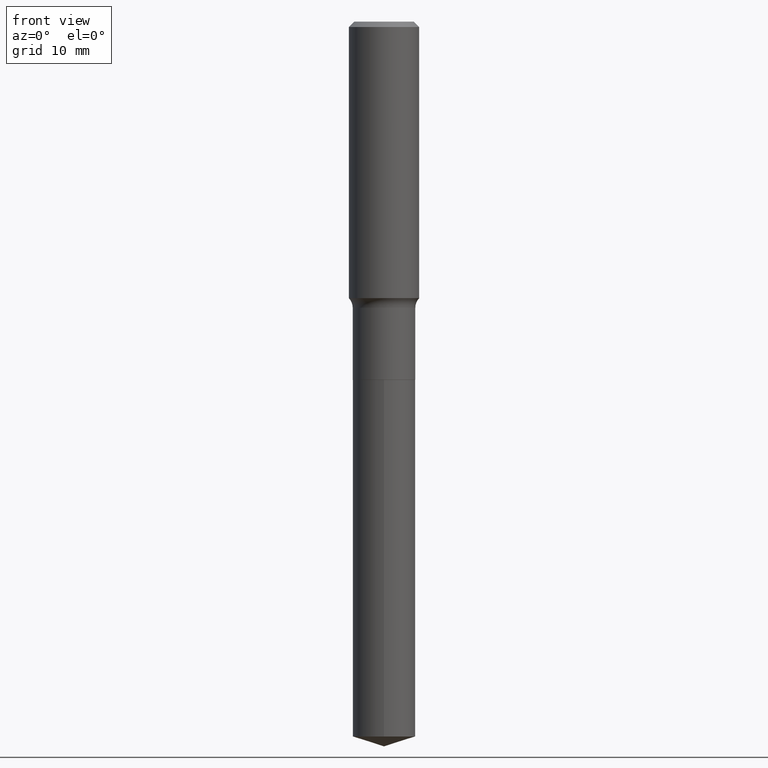
[diagram: clean part render]
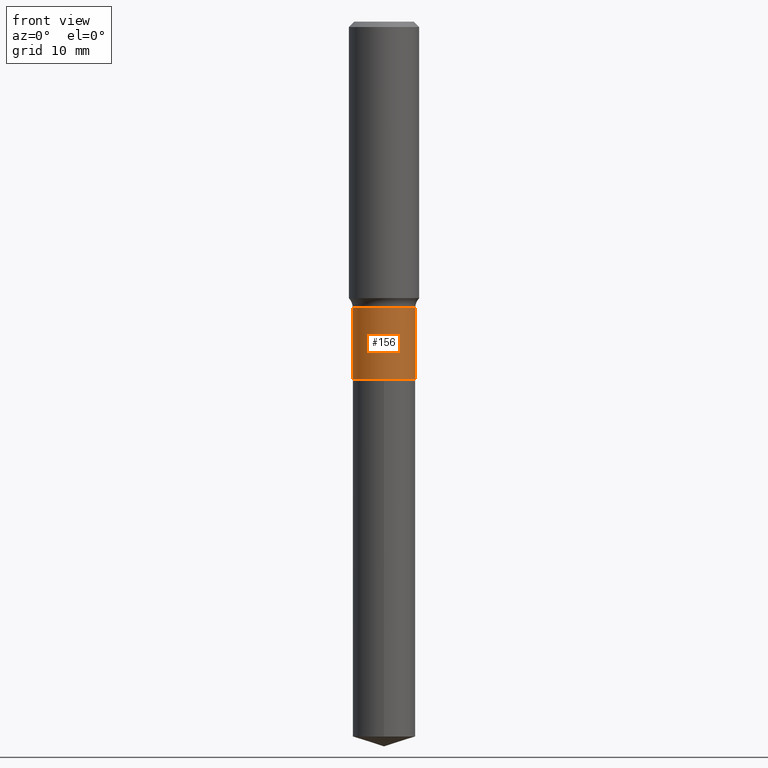
[diagram: same view with one face highlighted and labeled with its STEP entity id]
A machine part, front view. The second image highlights one B-rep face of the part: STEP entity #156.
In plain terms, the highlighted cylindrical surface (edge-blend (fillet) strip) has radius 4.4501 mm, axis along (-0, 0, 1).
Its self-contained STEP definition (entity closure, byte-faithful):
#18 = DIRECTION ( 'NONE',  ( 1.000000000000000000, -6.982962677686266711E-15, 4.876176775795935793E-29 ) ) ;
#19 = AXIS2_PLACEMENT_3D ( 'NONE', #237, #398, #187 ) ;
#22 = LINE ( 'NONE', #163, #172 ) ;
#30 = VECTOR ( 'NONE', #456, 39.37007874015748143 ) ;
#31 = EDGE_CURVE ( 'NONE', #434, #438, #274, .T. ) ;
#52 = CYLINDRICAL_SURFACE ( 'NONE', #253, 0.1751999999999999391 ) ;
#58 = EDGE_CURVE ( 'NONE', #403, #434, #137, .T. ) ;
#83 = FACE_OUTER_BOUND ( 'NONE', #254, .T. ) ;
#90 = CARTESIAN_POINT ( 'NONE',  ( 0.1751999999999999391, -1.223415061130633483E-15, 8.543061711194476516E-30 ) ) ;
#106 = EDGE_CURVE ( 'NONE', #403, #240, #22, .T. ) ;
#137 = CIRCLE ( 'NONE', #19, 0.1751999999999999946 ) ;
#152 = CARTESIAN_POINT ( 'NONE',  ( 3.914951011821784364E-29, -5.589512475353991008E-15, -1.600899999999999768 ) ) ;
#154 = CIRCLE ( 'NONE', #424, 0.1751999999999999391 ) ;
#156 = ADVANCED_FACE ( 'NONE', ( #83 ), #52, .T. ) ;
#163 = CARTESIAN_POINT ( 'NONE',  ( -0.1751999999999999391, 1.244870873051695093E-15, -8.617974278126592972E-30 ) ) ;
#172 = VECTOR ( 'NONE', #472, 39.37007874015748143 ) ;
#185 = ORIENTED_EDGE ( 'NONE', *, *, #31, .T. ) ;
#187 = DIRECTION ( 'NONE',  ( 1.000000000000000000, -6.982962677686263555E-15, 0.000000000000000000 ) ) ;
#189 = ORIENTED_EDGE ( 'NONE', *, *, #393, .F. ) ;
#192 = CARTESIAN_POINT ( 'NONE',  ( 0.1751999999999999946, -8.218248775368990478E-15, -2.003400000000000070 ) ) ;
#208 = CARTESIAN_POINT ( 'NONE',  ( -0.1751999999999999946, -5.047302221744479303E-15, -2.003400000000000070 ) ) ;
#237 = CARTESIAN_POINT ( 'NONE',  ( 4.899252206311302338E-29, -6.994833714238357390E-15, -2.003400000000000070 ) ) ;
#240 = VERTEX_POINT ( 'NONE', #299 ) ;
#245 = CARTESIAN_POINT ( 'NONE',  ( 0.000000000000000000, 0.000000000000000000, 0.000000000000000000 ) ) ;
#253 = AXIS2_PLACEMENT_3D ( 'NONE', #245, #469, #18 ) ;
#254 = EDGE_LOOP ( 'NONE', ( #316, #445, #185, #189 ) ) ;
#267 = DIRECTION ( 'NONE',  ( 1.000000000000000000, -6.982962677686265133E-15, 0.000000000000000000 ) ) ;
#274 = LINE ( 'NONE', #90, #30 ) ;
#299 = CARTESIAN_POINT ( 'NONE',  ( -0.1751999999999999391, -5.047302221744479303E-15, -1.600899999999999768 ) ) ;
#311 = DIRECTION ( 'NONE',  ( -2.445468806185136597E-29, 3.491481338843145583E-15, 1.000000000000000000 ) ) ;
#316 = ORIENTED_EDGE ( 'NONE', *, *, #106, .F. ) ;
#393 = EDGE_CURVE ( 'NONE', #240, #438, #154, .T. ) ;
#398 = DIRECTION ( 'NONE',  ( -2.445468806185136597E-29, 3.491481338843145583E-15, 1.000000000000000000 ) ) ;
#403 = VERTEX_POINT ( 'NONE', #208 ) ;
#424 = AXIS2_PLACEMENT_3D ( 'NONE', #152, #311, #267 ) ;
#434 = VERTEX_POINT ( 'NONE', #192 ) ;
#438 = VERTEX_POINT ( 'NONE', #457 ) ;
#445 = ORIENTED_EDGE ( 'NONE', *, *, #58, .T. ) ;
#456 = DIRECTION ( 'NONE',  ( -2.445468806185136877E-29, 3.491481338843145188E-15, 1.000000000000000000 ) ) ;
#457 = CARTESIAN_POINT ( 'NONE',  ( 0.1751999999999999391, -6.812927536484624885E-15, -1.600899999999999768 ) ) ;
#469 = DIRECTION ( 'NONE',  ( -2.445468806185136597E-29, 3.491481338843145583E-15, 1.000000000000000000 ) ) ;
#472 = DIRECTION ( 'NONE',  ( -2.445468806185136877E-29, 3.491481338843145188E-15, 1.000000000000000000 ) ) ;